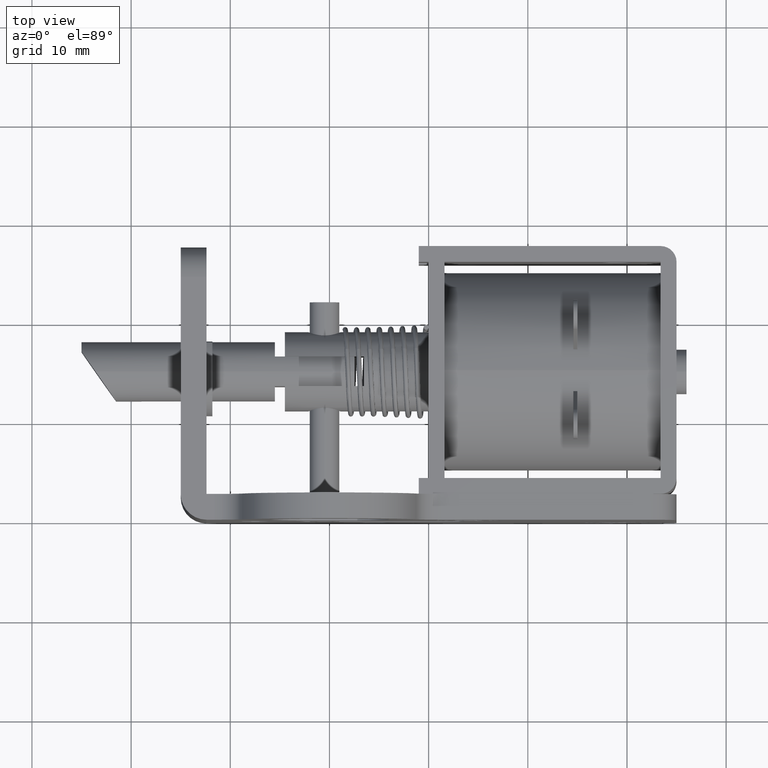
[diagram: clean part render]
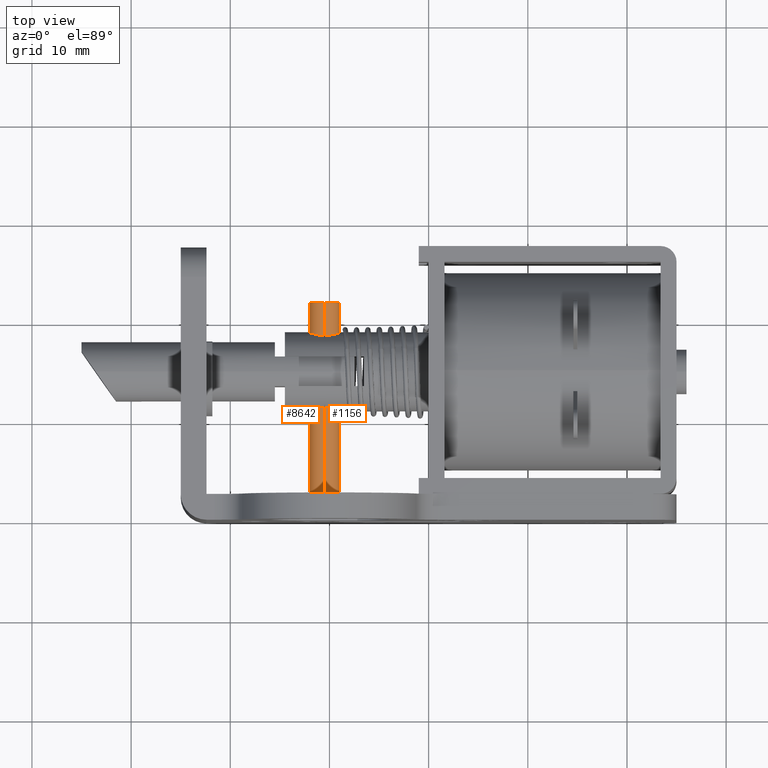
[diagram: same view with one multi-face feature highlighted, each face labeled with its STEP entity id]
A machine part, top view. The highlighted faces form ONE feature: a constant-radius fillet chain: 2 tangent blend faces with common blend radius 1.5 mm. The faces share edges in the B-rep.
Their STEP definitions:
[1] entity #1156 (Cylinder):
#17 = DIRECTION ( 'NONE',  ( 0.0000000000000000000, -1.000000000000000000, 0.0000000000000000000 ) ) ;
#152 = CARTESIAN_POINT ( 'NONE',  ( -0.5000000000000570700, 0.0000000000000000000, -12.49999599999999900 ) ) ;
#327 = DIRECTION ( 'NONE',  ( 0.0000000000000000000, 0.0000000000000000000, -1.000000000000000000 ) ) ;
#408 = EDGE_CURVE ( 'NONE', #6151, #1227, #2957, .T. ) ;
#552 = VECTOR ( 'NONE', #17, 1000.000000000000000 ) ;
#891 = VERTEX_POINT ( 'NONE', #4678 ) ;
#1156 = ADVANCED_FACE ( 'NONE', ( #3074 ), #7112, .T. ) ;
#1227 = VERTEX_POINT ( 'NONE', #2752 ) ;
#1393 = DIRECTION ( 'NONE',  ( -0.0000000000000000000, -1.000000000000000000, -0.0000000000000000000 ) ) ;
#1718 = CARTESIAN_POINT ( 'NONE',  ( -0.5000000000000568400, 22.10000000000000100, -9.500003999999998800 ) ) ;
#2752 = CARTESIAN_POINT ( 'NONE',  ( -0.5000000000000568400, 0.0000000000000000000, -9.500003999999998800 ) ) ;
#2957 = LINE ( 'NONE', #9764, #552 ) ;
#3017 = AXIS2_PLACEMENT_3D ( 'NONE', #10069, #9262, #327 ) ;
#3074 = FACE_OUTER_BOUND ( 'NONE', #7338, .T. ) ;
#3087 = DIRECTION ( 'NONE',  ( -0.0000000000000000000, -1.000000000000000000, -0.0000000000000000000 ) ) ;
#3228 = EDGE_CURVE ( 'NONE', #10539, #1227, #7708, .T. ) ;
#4678 = CARTESIAN_POINT ( 'NONE',  ( -0.5000000000000570700, 22.10000000000000100, -12.49999599999999900 ) ) ;
#5138 = ORIENTED_EDGE ( 'NONE', *, *, #3228, .F. ) ;
#5664 = CARTESIAN_POINT ( 'NONE',  ( -0.5000000000000570700, 1000.000000000000000, -12.49999599999999900 ) ) ;
#5833 = ORIENTED_EDGE ( 'NONE', *, *, #8692, .F. ) ;
#6151 = VERTEX_POINT ( 'NONE', #1718 ) ;
#6196 = CARTESIAN_POINT ( 'NONE',  ( -0.5000000000000570700, 0.0000000000000000000, -11.00000000000000000 ) ) ;
#6754 = AXIS2_PLACEMENT_3D ( 'NONE', #6196, #1393, #7039 ) ;
#7039 = DIRECTION ( 'NONE',  ( 0.0000000000000000000, 0.0000000000000000000, 1.000000000000000000 ) ) ;
#7067 = ORIENTED_EDGE ( 'NONE', *, *, #408, .T. ) ;
#7112 = CYLINDRICAL_SURFACE ( 'NONE', #3017, 1.499995999999999900 ) ;
#7272 = EDGE_CURVE ( 'NONE', #891, #6151, #7277, .T. ) ;
#7277 = CIRCLE ( 'NONE', #9621, 1.499995999999999900 ) ;
#7338 = EDGE_LOOP ( 'NONE', ( #8065, #7067, #5138, #5833 ) ) ;
#7357 = DIRECTION ( 'NONE',  ( 0.0000000000000000000, -1.000000000000000000, 0.0000000000000000000 ) ) ;
#7708 = CIRCLE ( 'NONE', #6754, 1.499995999999999900 ) ;
#7949 = CARTESIAN_POINT ( 'NONE',  ( -0.5000000000000570700, 22.10000000000000100, -11.00000000000000000 ) ) ;
#8065 = ORIENTED_EDGE ( 'NONE', *, *, #7272, .T. ) ;
#8411 = LINE ( 'NONE', #5664, #10334 ) ;
#8692 = EDGE_CURVE ( 'NONE', #891, #10539, #8411, .T. ) ;
#8778 = DIRECTION ( 'NONE',  ( 0.0000000000000000000, 0.0000000000000000000, 1.000000000000000000 ) ) ;
#9262 = DIRECTION ( 'NONE',  ( 0.0000000000000000000, -1.000000000000000000, 0.0000000000000000000 ) ) ;
#9621 = AXIS2_PLACEMENT_3D ( 'NONE', #7949, #3087, #8778 ) ;
#9764 = CARTESIAN_POINT ( 'NONE',  ( -0.5000000000000568400, 1000.000000000000000, -9.500003999999998800 ) ) ;
#10069 = CARTESIAN_POINT ( 'NONE',  ( -0.5000000000000570700, 1000.000000000000000, -11.00000000000000000 ) ) ;
#10334 = VECTOR ( 'NONE', #7357, 1000.000000000000000 ) ;
#10539 = VERTEX_POINT ( 'NONE', #152 ) ;
[2] entity #8642 (Cylinder):
#17 = DIRECTION ( 'NONE',  ( 0.0000000000000000000, -1.000000000000000000, 0.0000000000000000000 ) ) ;
#152 = CARTESIAN_POINT ( 'NONE',  ( -0.5000000000000570700, 0.0000000000000000000, -12.49999599999999900 ) ) ;
#408 = EDGE_CURVE ( 'NONE', #6151, #1227, #2957, .T. ) ;
#552 = VECTOR ( 'NONE', #17, 1000.000000000000000 ) ;
#787 = DIRECTION ( 'NONE',  ( 0.0000000000000000000, -1.000000000000000000, 0.0000000000000000000 ) ) ;
#891 = VERTEX_POINT ( 'NONE', #4678 ) ;
#919 = AXIS2_PLACEMENT_3D ( 'NONE', #4335, #10054, #5146 ) ;
#1227 = VERTEX_POINT ( 'NONE', #2752 ) ;
#1425 = CARTESIAN_POINT ( 'NONE',  ( -0.5000000000000570700, 0.0000000000000000000, -11.00000000000000000 ) ) ;
#1683 = AXIS2_PLACEMENT_3D ( 'NONE', #6409, #787, #5592 ) ;
#1718 = CARTESIAN_POINT ( 'NONE',  ( -0.5000000000000568400, 22.10000000000000100, -9.500003999999998800 ) ) ;
#2242 = DIRECTION ( 'NONE',  ( 0.0000000000000000000, 0.0000000000000000000, 1.000000000000000000 ) ) ;
#2752 = CARTESIAN_POINT ( 'NONE',  ( -0.5000000000000568400, 0.0000000000000000000, -9.500003999999998800 ) ) ;
#2957 = LINE ( 'NONE', #9764, #552 ) ;
#4321 = CYLINDRICAL_SURFACE ( 'NONE', #1683, 1.499995999999999900 ) ;
#4335 = CARTESIAN_POINT ( 'NONE',  ( -0.5000000000000570700, 22.10000000000000100, -11.00000000000000000 ) ) ;
#4374 = ORIENTED_EDGE ( 'NONE', *, *, #5670, .F. ) ;
#4581 = FACE_OUTER_BOUND ( 'NONE', #7843, .T. ) ;
#4678 = CARTESIAN_POINT ( 'NONE',  ( -0.5000000000000570700, 22.10000000000000100, -12.49999599999999900 ) ) ;
#5146 = DIRECTION ( 'NONE',  ( 0.0000000000000000000, 0.0000000000000000000, 1.000000000000000000 ) ) ;
#5592 = DIRECTION ( 'NONE',  ( 0.0000000000000000000, 0.0000000000000000000, -1.000000000000000000 ) ) ;
#5664 = CARTESIAN_POINT ( 'NONE',  ( -0.5000000000000570700, 1000.000000000000000, -12.49999599999999900 ) ) ;
#5670 = EDGE_CURVE ( 'NONE', #1227, #10539, #8241, .T. ) ;
#6151 = VERTEX_POINT ( 'NONE', #1718 ) ;
#6288 = ORIENTED_EDGE ( 'NONE', *, *, #8692, .T. ) ;
#6409 = CARTESIAN_POINT ( 'NONE',  ( -0.5000000000000570700, 1000.000000000000000, -11.00000000000000000 ) ) ;
#6877 = CIRCLE ( 'NONE', #919, 1.499995999999999900 ) ;
#7027 = EDGE_CURVE ( 'NONE', #6151, #891, #6877, .T. ) ;
#7066 = DIRECTION ( 'NONE',  ( -0.0000000000000000000, -1.000000000000000000, -0.0000000000000000000 ) ) ;
#7304 = AXIS2_PLACEMENT_3D ( 'NONE', #1425, #7066, #2242 ) ;
#7357 = DIRECTION ( 'NONE',  ( 0.0000000000000000000, -1.000000000000000000, 0.0000000000000000000 ) ) ;
#7587 = ORIENTED_EDGE ( 'NONE', *, *, #7027, .T. ) ;
#7843 = EDGE_LOOP ( 'NONE', ( #9217, #7587, #6288, #4374 ) ) ;
#8241 = CIRCLE ( 'NONE', #7304, 1.499995999999999900 ) ;
#8411 = LINE ( 'NONE', #5664, #10334 ) ;
#8642 = ADVANCED_FACE ( 'NONE', ( #4581 ), #4321, .T. ) ;
#8692 = EDGE_CURVE ( 'NONE', #891, #10539, #8411, .T. ) ;
#9217 = ORIENTED_EDGE ( 'NONE', *, *, #408, .F. ) ;
#9764 = CARTESIAN_POINT ( 'NONE',  ( -0.5000000000000568400, 1000.000000000000000, -9.500003999999998800 ) ) ;
#10054 = DIRECTION ( 'NONE',  ( -0.0000000000000000000, -1.000000000000000000, -0.0000000000000000000 ) ) ;
#10334 = VECTOR ( 'NONE', #7357, 1000.000000000000000 ) ;
#10539 = VERTEX_POINT ( 'NONE', #152 ) ;